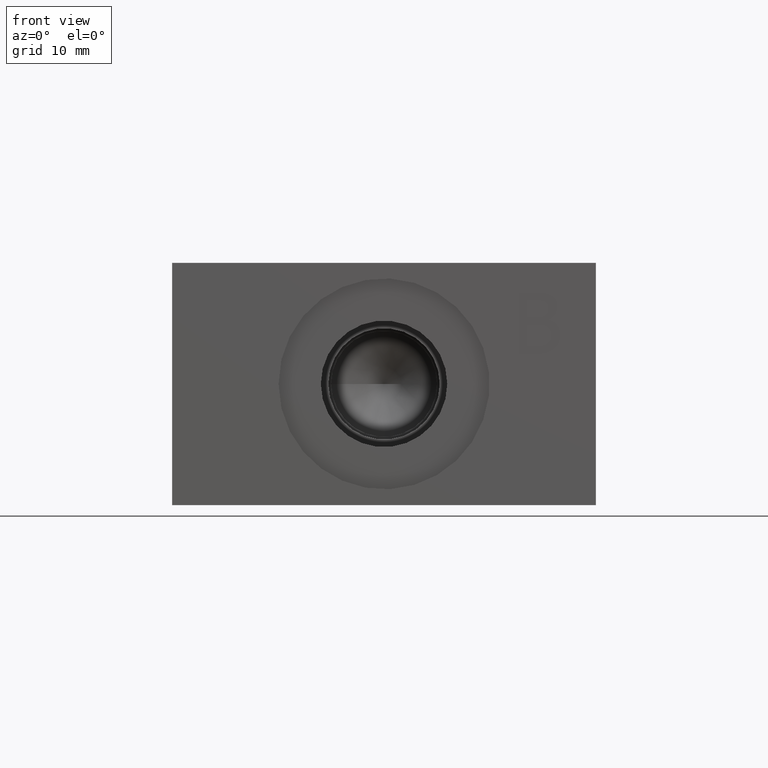
[diagram: clean part render]
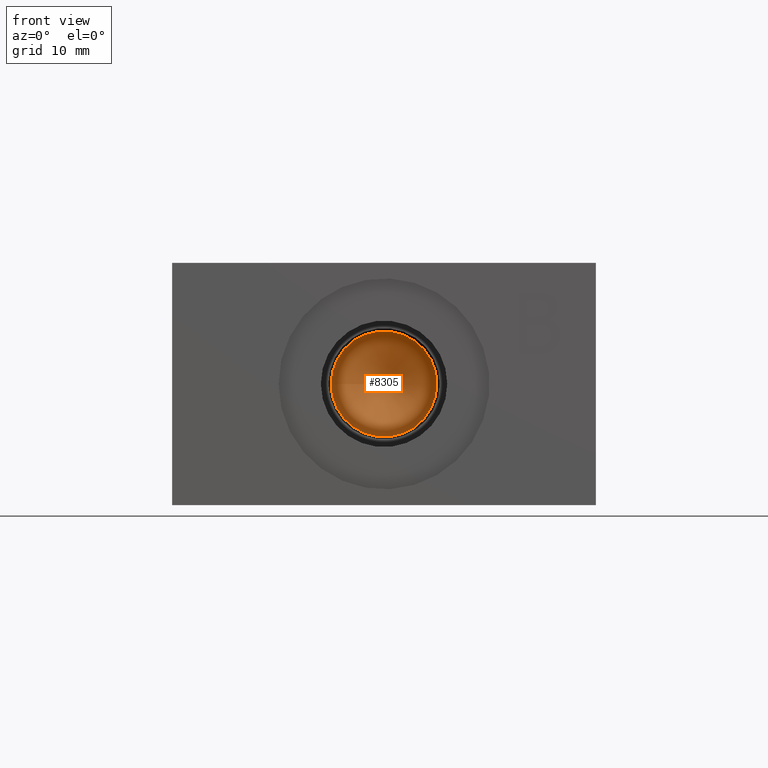
[diagram: same view with one face highlighted and labeled with its STEP entity id]
A machine part, front view. The second image highlights one B-rep face of the part: STEP entity #8305.
In plain terms, the highlighted conical surface has half-angle 60 deg.
Its self-contained STEP definition (entity closure, byte-faithful):
#53=CONICAL_SURFACE('',#8695,2.77495,1.0471975511966);
#100=CIRCLE('',#8696,5.5499);
#875=FACE_OUTER_BOUND('',#1358,.T.);
#1358=EDGE_LOOP('',(#7329,#7330,#7331));
#2241=LINE('',#13941,#3107);
#3107=VECTOR('',#10286,2.77495);
#4050=VERTEX_POINT('',#13938);
#4051=VERTEX_POINT('',#13940);
#5159=EDGE_CURVE('',#4050,#4050,#100,.T.);
#5160=EDGE_CURVE('',#4050,#4051,#2241,.T.);
#7329=ORIENTED_EDGE('',*,*,#5159,.T.);
#7330=ORIENTED_EDGE('',*,*,#5160,.T.);
#7331=ORIENTED_EDGE('',*,*,#5160,.F.);
#8305=ADVANCED_FACE('',(#875),#53,.F.);
#8695=AXIS2_PLACEMENT_3D('',#13937,#10282,#10283);
#8696=AXIS2_PLACEMENT_3D('',#13939,#10284,#10285);
#10282=DIRECTION('center_axis',(0.,-1.,0.));
#10283=DIRECTION('ref_axis',(1.,0.,0.));
#10284=DIRECTION('center_axis',(0.,-1.,0.));
#10285=DIRECTION('ref_axis',(1.,0.,0.));
#10286=DIRECTION('',(0.866025403784439,0.5,1.06057523872491E-16));
#13937=CARTESIAN_POINT('Origin',(22.225,20.8299181294878,12.7));
#13938=CARTESIAN_POINT('',(16.6751,19.2278,12.7));
#13939=CARTESIAN_POINT('Origin',(22.225,19.2278,12.7));
#13940=CARTESIAN_POINT('',(22.225,22.4320362589755,12.7));
#13941=CARTESIAN_POINT('',(19.45005,20.8299181294878,12.7));